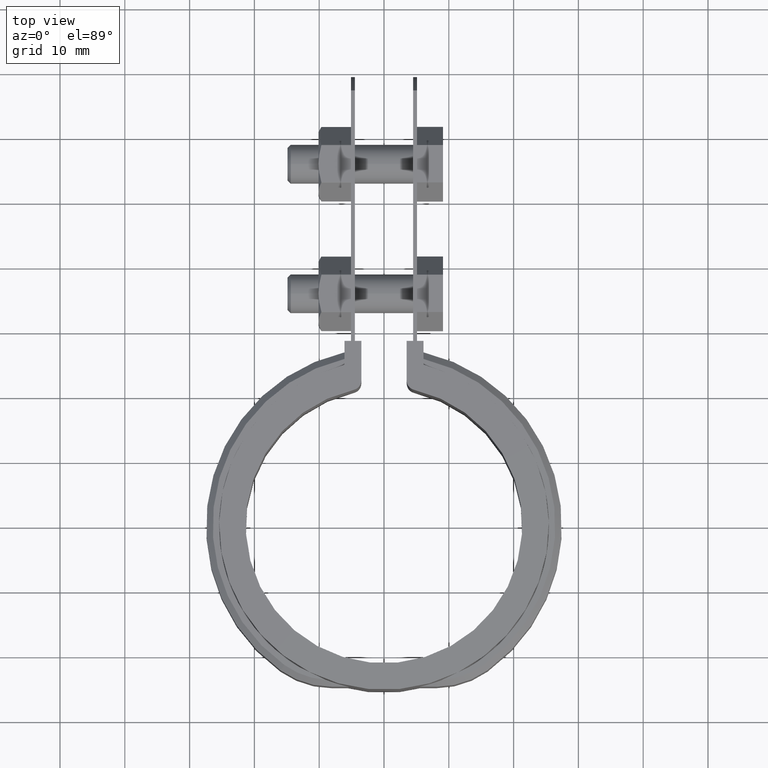
[diagram: clean part render]
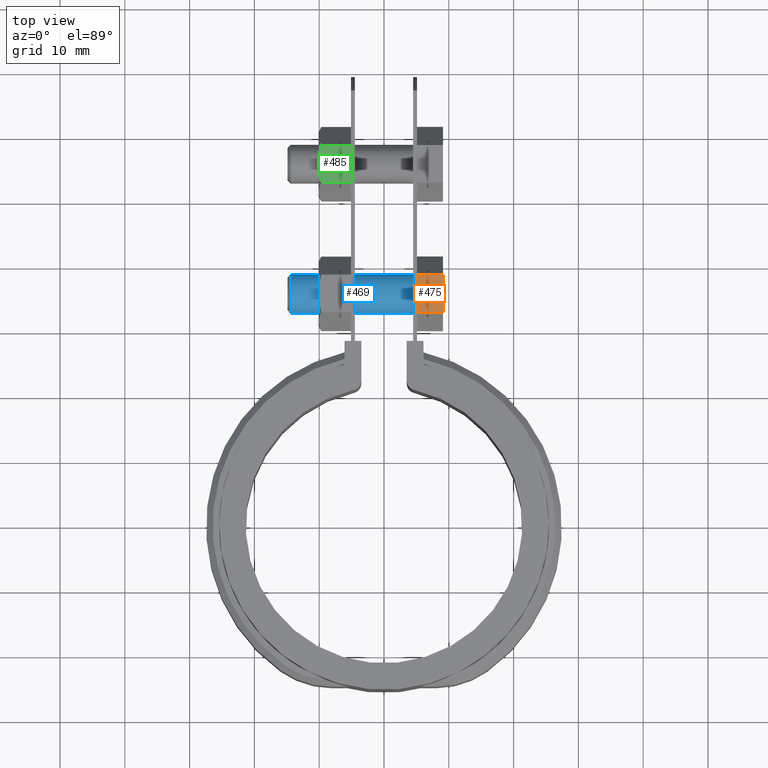
[diagram: same view with three faces highlighted in distinct colors, each labeled with its STEP entity id]
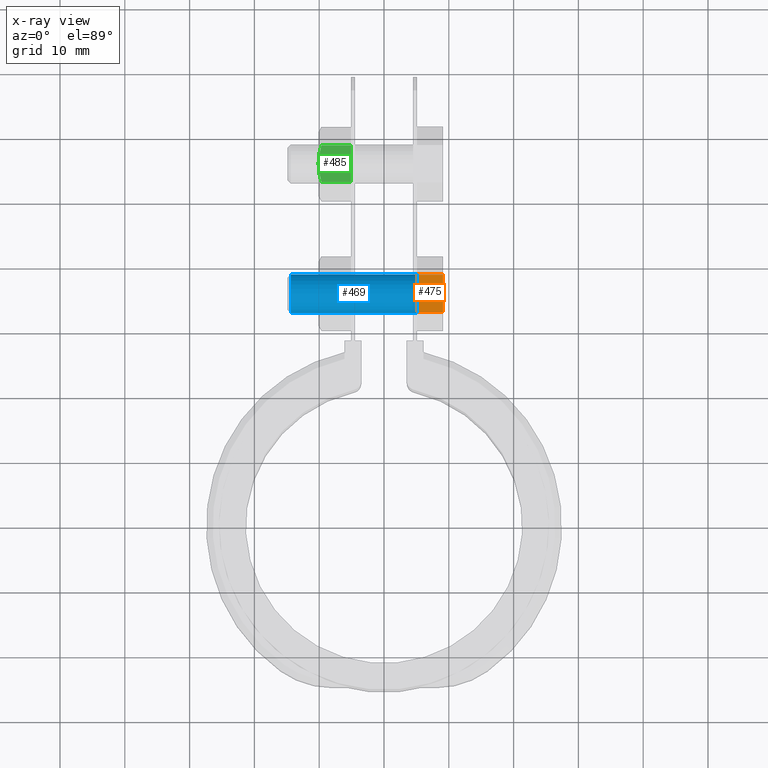
[diagram: x-ray of the same camera — body ghosted, the three highlighted faces saturated]
A machine part, top view with three faces highlighted in distinct colors.
The next image is the same camera in x-ray (body ghosted, the three faces saturated) — at least one of them is partly hidden behind the body in this view.
Their STEP definitions:

[orange] entity #475 — the highlighted planar face has unit normal (0, 0, -1).
#475 = ADVANCED_FACE( '', ( #880 ), #881, .F. );
#880 = FACE_OUTER_BOUND( '', #1726, .T. );
#881 = PLANE( '', #1727 );
#1726 = EDGE_LOOP( '', ( #4506, #4507, #4508, #4509 ) );
#1727 = AXIS2_PLACEMENT_3D( '', #4510, #4511, #4512 );
#4506 = ORIENTED_EDGE( '', *, *, #5304, .T. );
#4507 = ORIENTED_EDGE( '', *, *, #5320, .F. );
#4508 = ORIENTED_EDGE( '', *, *, #5316, .F. );
#4509 = ORIENTED_EDGE( '', *, *, #5321, .T. );
#4510 = CARTESIAN_POINT( '', ( 9.10000000000008, 38.7892623659214, -7.50000000000016 ) );
#4511 = DIRECTION( '', ( 0.000000000000000, 0.000000000000000, -1.00000000000000 ) );
#4512 = DIRECTION( '', ( -1.00000000000000, 0.000000000000000, 0.000000000000000 ) );
#5304 = EDGE_CURVE( '', #6161, #6159, #6162, .T. );
#5316 = EDGE_CURVE( '', #6180, #6182, #6183, .T. );
#5320 = EDGE_CURVE( '', #6182, #6159, #6188, .T. );
#5321 = EDGE_CURVE( '', #6180, #6161, #6189, .T. );
#6159 = VERTEX_POINT( '', #9741 );
#6161 = VERTEX_POINT( '', #9744 );
#6162 = LINE( '', #9745, #9746 );
#6180 = VERTEX_POINT( '', #9771 );
#6182 = VERTEX_POINT( '', #9774 );
#6183 = LINE( '', #9775, #9776 );
#6188 = LINE( '', #9784, #9785 );
#6189 = LINE( '', #9786, #9787 );
#9741 = CARTESIAN_POINT( '', ( 5.10000000000008, 33.0157596740252, -7.50000000000016 ) );
#9744 = CARTESIAN_POINT( '', ( 5.10000000000008, 38.7892623659214, -7.50000000000016 ) );
#9745 = CARTESIAN_POINT( '', ( 5.10000000000008, 38.7892623659214, -7.50000000000016 ) );
#9746 = VECTOR( '', #10590, 999.999999999992 );
#9771 = CARTESIAN_POINT( '', ( 9.10000000000008, 38.7892623659214, -7.50000000000016 ) );
#9774 = CARTESIAN_POINT( '', ( 9.10000000000008, 33.0157596740252, -7.50000000000016 ) );
#9775 = CARTESIAN_POINT( '', ( 9.10000000000008, 38.7892623659214, -7.50000000000016 ) );
#9776 = VECTOR( '', #10608, 999.999999999992 );
#9784 = CARTESIAN_POINT( '', ( 9.10000000000008, 33.0157596740252, -7.50000000000016 ) );
#9785 = VECTOR( '', #10612, 1000.00000000000 );
#9786 = CARTESIAN_POINT( '', ( 9.10000000000008, 38.7892623659214, -7.50000000000016 ) );
#9787 = VECTOR( '', #10613, 1000.00000000000 );
#10590 = DIRECTION( '', ( 0.000000000000000, -1.00000000000000, 0.000000000000000 ) );
#10608 = DIRECTION( '', ( 0.000000000000000, -1.00000000000000, 0.000000000000000 ) );
#10612 = DIRECTION( '', ( -1.00000000000000, 0.000000000000000, 0.000000000000000 ) );
#10613 = DIRECTION( '', ( -1.00000000000000, 0.000000000000000, 0.000000000000000 ) );

[blue] entity #469 — the highlighted cylindrical surface (bore or boss wall) has radius 3 mm, axis along (1, 0, 0).
#469 = ADVANCED_FACE( '', ( #866, #867 ), #868, .T. );
#866 = FACE_OUTER_BOUND( '', #1712, .T. );
#867 = FACE_OUTER_BOUND( '', #1713, .T. );
#868 = CYLINDRICAL_SURFACE( '', #1714, 3.00000000000002 );
#1712 = EDGE_LOOP( '', ( #4469 ) );
#1713 = EDGE_LOOP( '', ( #4470 ) );
#1714 = AXIS2_PLACEMENT_3D( '', #4471, #4472, #4473 );
#4469 = ORIENTED_EDGE( '', *, *, #5313, .T. );
#4470 = ORIENTED_EDGE( '', *, *, #5307, .F. );
#4471 = CARTESIAN_POINT( '', ( 13.5487843911359, 35.9025110199733, -12.5000000000002 ) );
#4472 = DIRECTION( '', ( 1.00000000000000, 0.000000000000000, 0.000000000000000 ) );
#4473 = DIRECTION( '', ( 0.000000000000000, 0.000000000000000, 1.00000000000000 ) );
#5307 = EDGE_CURVE( '', #6166, #6166, #6167, .F. );
#5313 = EDGE_CURVE( '', #6176, #6176, #6177, .T. );
#6166 = VERTEX_POINT( '', #9752 );
#6167 = CIRCLE( '', #9753, 3.00000000000002 );
#6176 = VERTEX_POINT( '', #9767 );
#6177 = CIRCLE( '', #9768, 3.00000000000002 );
#9752 = CARTESIAN_POINT( '', ( 5.10000000000008, 35.9025110199733, -9.50000000000018 ) );
#9753 = AXIS2_PLACEMENT_3D( '', #10593, #10594, #10595 );
#9767 = CARTESIAN_POINT( '', ( -14.3999999999999, 35.9025110199733, -15.5000000000002 ) );
#9768 = AXIS2_PLACEMENT_3D( '', #10601, #10602, #10603 );
#10593 = CARTESIAN_POINT( '', ( 5.10000000000008, 35.9025110199733, -12.5000000000002 ) );
#10594 = DIRECTION( '', ( -1.00000000000000, 0.000000000000000, 0.000000000000000 ) );
#10595 = DIRECTION( '', ( 0.000000000000000, 0.000000000000000, 1.00000000000000 ) );
#10601 = CARTESIAN_POINT( '', ( -14.3999999999999, 35.9025110199733, -12.5000000000002 ) );
#10602 = DIRECTION( '', ( 1.00000000000000, 0.000000000000000, 0.000000000000000 ) );
#10603 = DIRECTION( '', ( 0.000000000000000, 0.000000000000000, -1.00000000000000 ) );

[green] entity #485 — the highlighted planar face has unit normal (0, -0, -1).
#485 = ADVANCED_FACE( '', ( #902 ), #903, .F. );
#902 = FACE_OUTER_BOUND( '', #1748, .T. );
#903 = PLANE( '', #1749 );
#1748 = EDGE_LOOP( '', ( #4590, #4591, #4592, #4593, #4594 ) );
#1749 = AXIS2_PLACEMENT_3D( '', #4595, #4596, #4597 );
#4590 = ORIENTED_EDGE( '', *, *, #5353, .F. );
#4591 = ORIENTED_EDGE( '', *, *, #5358, .F. );
#4592 = ORIENTED_EDGE( '', *, *, #5352, .F. );
#4593 = ORIENTED_EDGE( '', *, *, #5349, .F. );
#4594 = ORIENTED_EDGE( '', *, *, #5359, .F. );
#4595 = CARTESIAN_POINT( '', ( -5.10000000000002, 58.7892623659211, -7.50000000000008 ) );
#4596 = DIRECTION( '', ( 0.000000000000000, -1.66533453693775E-016, -1.00000000000000 ) );
#4597 = DIRECTION( '', ( 0.000000000000000, 1.00000000000000, -1.66533453693775E-016 ) );
#5349 = EDGE_CURVE( '', #6239, #6221, #6241, .T. );
#5352 = EDGE_CURVE( '', #6221, #6242, #6246, .F. );
#5353 = EDGE_CURVE( '', #6199, #6247, #6248, .T. );
#5358 = EDGE_CURVE( '', #6242, #6199, #6254, .T. );
#5359 = EDGE_CURVE( '', #6247, #6239, #6255, .T. );
#6199 = VERTEX_POINT( '', #9809 );
#6221 = VERTEX_POINT( '', #9844 );
#6239 = VERTEX_POINT( '', #9866 );
#6241 = LINE( '', #9868, #9869 );
#6242 = VERTEX_POINT( '', #9870 );
#6246 = LINE( '', #9875, #9876 );
#6247 = VERTEX_POINT( '', #9877 );
#6248 = B_SPLINE_CURVE_WITH_KNOTS( '', 3, ( #9878, #9879, #9880, #9881, #9882, #9883, #9884, #9885 ), .UNSPECIFIED., .F., .F., ( 4, 2, 2, 4 ), ( 0.00287277010488787, 0.00358771851305256, 0.00430266692121725, 0.00573256373754661 ), .UNSPECIFIED. );
#6254 = B_SPLINE_CURVE_WITH_KNOTS( '', 3, ( #9900, #9901, #9902, #9903 ), .UNSPECIFIED., .F., .F., ( 4, 4 ), ( 7.22330826798642E-007, 0.00287277010488787 ), .UNSPECIFIED. );
#6255 = LINE( '', #9904, #9905 );
#9809 = CARTESIAN_POINT( '', ( -10.1000000000000, 55.9025110199730, -7.50000000000008 ) );
#9844 = CARTESIAN_POINT( '', ( -5.10000000000002, 53.0630568470729, -7.50000000000008 ) );
#9866 = CARTESIAN_POINT( '', ( -5.10000000000002, 58.7419651928731, -7.50000000000008 ) );
#9868 = CARTESIAN_POINT( '', ( -5.10000000000002, 58.7775110199730, -7.50000000000008 ) );
#9869 = VECTOR( '', #10669, 999.999999999998 );
#9870 = CARTESIAN_POINT( '', ( -9.66698729810783, 53.0630568470729, -7.50000000000008 ) );
#9875 = CARTESIAN_POINT( '', ( -5.10000000000002, 53.0630568470729, -7.50000000000008 ) );
#9876 = VECTOR( '', #10674, 1000.00000000000 );
#9877 = CARTESIAN_POINT( '', ( -9.66698729810783, 58.7419651928731, -7.50000000000008 ) );
#9878 = CARTESIAN_POINT( '', ( -10.1000000000001, 55.9025110199730, -7.50000000000008 ) );
#9879 = CARTESIAN_POINT( '', ( -10.1000000000001, 56.1431339786641, -7.50000000000008 ) );
#9880 = CARTESIAN_POINT( '', ( -10.0898108720833, 56.3851472901724, -7.50000000000008 ) );
#9881 = CARTESIAN_POINT( '', ( -10.0502996398894, 56.8639637270829, -7.50000000000008 ) );
#9882 = CARTESIAN_POINT( '', ( -10.0210226875360, 57.1017969030003, -7.50000000000008 ) );
#9883 = CARTESIAN_POINT( '', ( -9.90799451667578, 57.8111282299871, -7.50000000000008 ) );
#9884 = CARTESIAN_POINT( '', ( -9.79913188755709, 58.2784723906045, -7.50000000000008 ) );
#9885 = CARTESIAN_POINT( '', ( -9.66698729810784, 58.7419651928731, -7.50000000000008 ) );
#9900 = CARTESIAN_POINT( '', ( -9.66698729810784, 53.0630568470729, -7.50000000000008 ) );
#9901 = CARTESIAN_POINT( '', ( -9.93203573458752, 53.9927055226099, -7.50000000000008 ) );
#9902 = CARTESIAN_POINT( '', ( -10.1000000000001, 54.9358949327077, -7.50000000000008 ) );
#9903 = CARTESIAN_POINT( '', ( -10.1000000000001, 55.9025110199730, -7.50000000000008 ) );
#9904 = CARTESIAN_POINT( '', ( -5.10000000000002, 58.7419651928731, -7.50000000000008 ) );
#9905 = VECTOR( '', #10679, 1000.00000000000 );
#10669 = DIRECTION( '', ( 0.000000000000000, -1.00000000000000, 4.99600361081321E-016 ) );
#10674 = DIRECTION( '', ( 1.00000000000000, 0.000000000000000, 0.000000000000000 ) );
#10679 = DIRECTION( '', ( 1.00000000000000, 0.000000000000000, 0.000000000000000 ) );